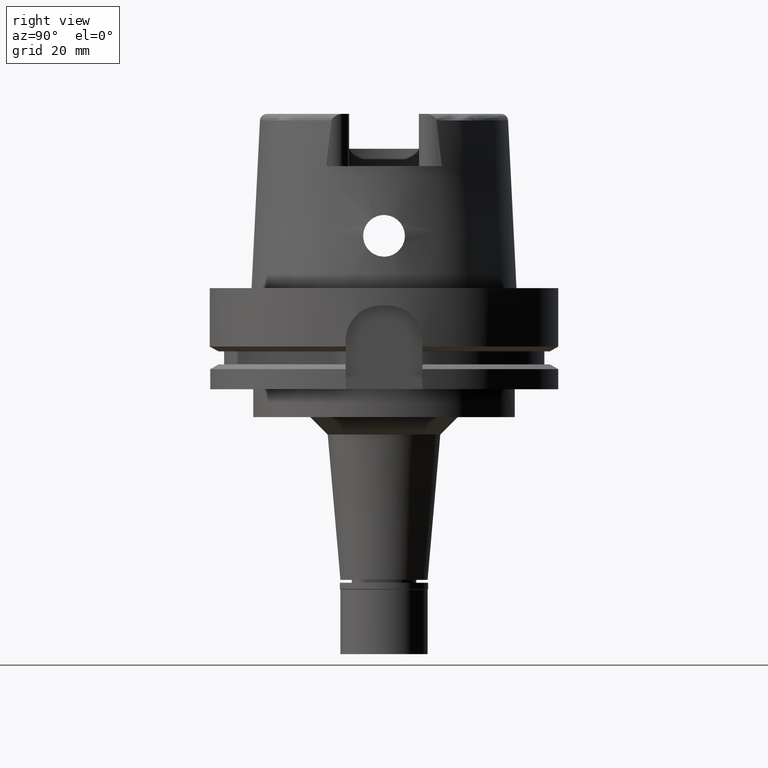
[diagram: clean part render]
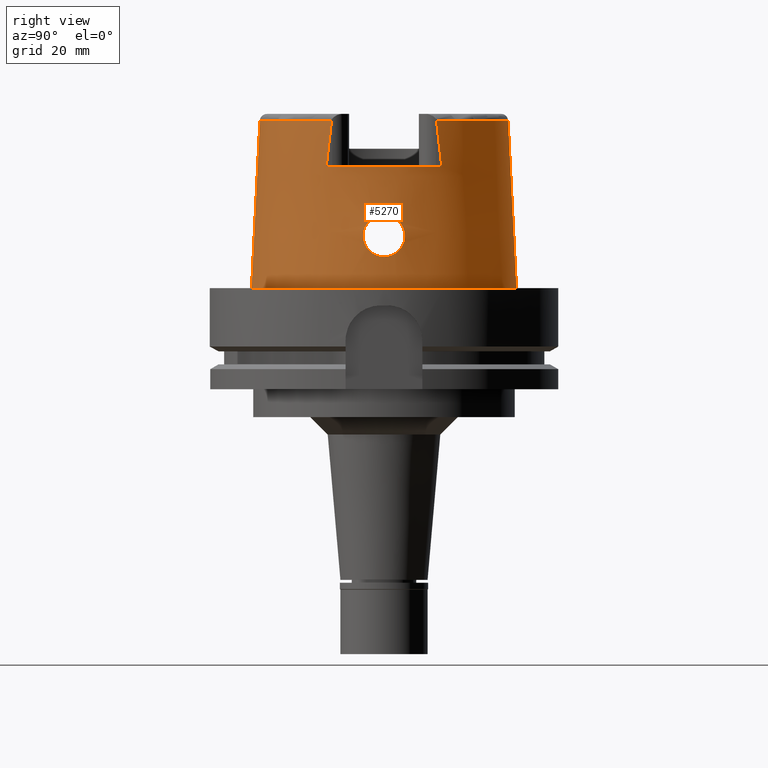
[diagram: same view with one face highlighted and labeled with its STEP entity id]
A machine part, right view. The second image highlights one B-rep face of the part: STEP entity #5270.
In plain terms, the highlighted conical surface has half-angle 2.862 deg.
Its self-contained STEP definition (entity closure, byte-faithful):
#5 = CARTESIAN_POINT ( 'NONE',  ( 36.84402229026887454, 3.436186891136067789, 19.91955858918327849 ) ) ;
#29 = CARTESIAN_POINT ( 'NONE',  ( 37.04093355832799261, 5.180103171425884945, 11.96593483695172644 ) ) ;
#124 = CARTESIAN_POINT ( 'NONE',  ( 36.90259820743139585, -2.267686303814399729, 20.55496554247947216 ) ) ;
#138 = CIRCLE ( 'NONE', #2741, 38.00001658251999714 ) ;
#147 = CARTESIAN_POINT ( 'NONE',  ( 37.22558408205313896, 4.215462280552438656, 10.73034759453282661 ) ) ;
#155 = CARTESIAN_POINT ( 'NONE',  ( 37.04556476977383284, -5.159838563029921055, 11.93750650502049915 ) ) ;
#176 = CARTESIAN_POINT ( 'NONE',  ( 36.94386214748547559, -5.570498757922903721, 12.77074300232805726 ) ) ;
#201 = CARTESIAN_POINT ( 'NONE',  ( 36.86747091515753283, -5.819783320285579542, 13.52649656315805338 ) ) ;
#234 = CARTESIAN_POINT ( 'NONE',  ( 32.25000000000000000, -15.55533876384941649, 43.94468602938906798 ) ) ;
#236 = CARTESIAN_POINT ( 'NONE',  ( 36.92015152081025064, -5.653685847524599239, 12.99039699923708824 ) ) ;
#246 = CARTESIAN_POINT ( 'NONE',  ( 0.002482252536769999872, 35.59494263424999616, 48.09987853799000135 ) ) ;
#263 = CARTESIAN_POINT ( 'NONE',  ( 36.79807234883478628, -4.182791388990104942, 19.30177999332491368 ) ) ;
#273 = DIRECTION ( 'NONE',  ( -5.154182075169067115E-05, 0.04993927430816067631, -0.9987522546783135224 ) ) ;
#330 = VERTEX_POINT ( 'NONE', #2910 ) ;
#339 = ORIENTED_EDGE ( 'NONE', *, *, #4291, .T. ) ;
#343 = CARTESIAN_POINT ( 'NONE',  ( 37.32349699264754861, 3.549655797967083970, 10.15782959666405993 ) ) ;
#344 = ORIENTED_EDGE ( 'NONE', *, *, #4361, .F. ) ;
#354 = CARTESIAN_POINT ( 'NONE',  ( 37.45383461885879228, -2.332393849465486557, 9.471884985776414467 ) ) ;
#368 = CARTESIAN_POINT ( 'NONE',  ( 36.88054672358548203, 2.764080532943880009, 20.32632467848313951 ) ) ;
#396 = CARTESIAN_POINT ( 'NONE',  ( 36.75577767514798921, 4.839767174970687869, 18.55275732080349727 ) ) ;
#397 = VERTEX_POINT ( 'NONE', #3364 ) ;
#409 = CARTESIAN_POINT ( 'NONE',  ( 37.39624438456338851, -2.944012575213589944, 9.768611615685383498 ) ) ;
#430 = CARTESIAN_POINT ( 'NONE',  ( 36.76908159248679198, 5.999138393293049099, 14.89581552774000883 ) ) ;
#448 = CARTESIAN_POINT ( 'NONE',  ( 36.85474125431106529, -3.250715232015903844, 20.04323978199477096 ) ) ;
#460 = CARTESIAN_POINT ( 'NONE',  ( 32.24997259582665521, 15.06456612037124998, 48.09965114463530256 ) ) ;
#483 = CARTESIAN_POINT ( 'NONE',  ( 32.25000000000000000, -16.55285457013000183, 35.00000000000000000 ) ) ;
#526 = B_SPLINE_CURVE_WITH_KNOTS ( 'NONE', 3,
 ( #1342, #2628, #5268, #3115, #3515, #4782, #3454, #976, #547, #2689, #124, #1851, #3563, #4354, #5300, #1422, #3138, #2220, #4302, #448, #1048, #3158, #3606, #3638, #3690, #2371, #5349, #2324, #263, #4484, #2401, #3182, #600, #1928, #2761, #1021, #2813, #5431, #5324, #5405, #3667, #2738, #1524, #3206, #2707, #4460, #3584, #4024, #620, #4111, #2346, #4080, #4003, #4048, #4917, #4882, #3235, #201, #1900, #4508, #236, #1982, #5382, #571, #176, #1098, #1499, #1447, #4966, #1468, #4940, #155, #2292, #1073, #1880, #2785, #647, #4543, #1961, #685, #1551, #3263, #5000, #4429, #4138, #2454, #4170, #3783, #1588, #409, #823, #1129, #5059, #2871, #1679, #354, #3355, #4259, #3389, #3417, #1182 ),
 .UNSPECIFIED., .F., .F.,
 ( 4, 2, 2, 1, 1, 1, 1, 2, 2, 2, 2, 1, 1, 2, 2, 2, 1, 1, 1, 2, 2, 2, 2, 2, 1, 1, 2, 2, 2, 2, 1, 1, 2, 2, 2, 2, 2, 1, 1, 1, 2, 2, 2, 2, 1, 1, 2, 2, 2, 1, 1, 1, 2, 2, 2, 2, 2, 1, 1, 2, 2, 4 ),
 ( 0.0000000000000000000, 0.06250000000000154043, 0.09375000000000224820, 0.1093750000000026090, 0.1171875000000027200, 0.1210937500000026645, 0.1230468750000027339, 0.1240234375000027339, 0.1250000000000027478, 0.1562500000000043576, 0.1718750000000050238, 0.1796875000000051903, 0.1835937500000053568, 0.1855468750000053291, 0.1875000000000053013, 0.2187500000000029143, 0.2343750000000017486, 0.2421875000000013878, 0.2460937500000011935, 0.2480468750000010270, 0.2500000000000008882, 0.3124999999999921729, 0.3437499999999876210, 0.3593749999999853451, 0.3671874999999841238, 0.3710937499999835132, 0.3730468749999835132, 0.3749999999999834577, 0.4374999999999863443, 0.4687499999999877875, 0.4843749999999883982, 0.4921874999999888978, 0.4960937499999889533, 0.4999999999999890643, 0.5624999999999901190, 0.5937499999999906741, 0.6093749999999910072, 0.6171874999999912292, 0.6210937499999913403, 0.6230468749999914513, 0.6240234374999914513, 0.6249999999999913403, 0.6562499999999917843, 0.6718749999999917843, 0.6796874999999916733, 0.6835937499999915623, 0.6855468749999915623, 0.6874999999999916733, 0.7187499999999931166, 0.7343749999999937828, 0.7421874999999940048, 0.7460937499999940048, 0.7480468749999940048, 0.7499999999999940048, 0.8124999999999945599, 0.8437499999999947820, 0.8593749999999950040, 0.8671874999999951150, 0.8710937499999951150, 0.8730468749999952260, 0.8749999999999952260, 1.000000000000000000 ),
 .UNSPECIFIED. ) ;
#547 = CARTESIAN_POINT ( 'NONE',  ( 36.90506814139484959, -2.206734380189449674, 20.57956359592819595 ) ) ;
#556 = ORIENTED_EDGE ( 'NONE', *, *, #3353, .T. ) ;
#562 = CARTESIAN_POINT ( 'NONE',  ( 37.45916978137763920, 2.267834944314239376, 9.445096860679138118 ) ) ;
#571 = CARTESIAN_POINT ( 'NONE',  ( 36.94183415914631041, -5.577808340860750391, 12.78903737493963177 ) ) ;
#591 = CARTESIAN_POINT ( 'NONE',  ( 37.13276340953054699, 4.744108422464647035, 11.32150295336093038 ) ) ;
#600 = CARTESIAN_POINT ( 'NONE',  ( 36.77296933009223068, -4.554611889151106929, 18.93048340402709329 ) ) ;
#620 = CARTESIAN_POINT ( 'NONE',  ( 36.74152252528565299, -5.979529405142266718, 15.50444706774793246 ) ) ;
#647 = CARTESIAN_POINT ( 'NONE',  ( 37.07598020347138856, -5.020155170366109587, 11.71393959176008082 ) ) ;
#685 = CARTESIAN_POINT ( 'NONE',  ( 37.15796435494310401, -4.603951143096521648, 11.15119575636387417 ) ) ;
#705 = B_SPLINE_CURVE_WITH_KNOTS ( 'NONE', 3,
 ( #4110, #234, #3297, #1071 ),
 .UNSPECIFIED., .F., .F.,
 ( 4, 4 ),
 ( 0.0000000000000000000, 1.000000000000000000 ),
 .UNSPECIFIED. ) ;
#708 = EDGE_CURVE ( 'NONE', #2185, #2504, #705, .T. ) ;
#719 = B_SPLINE_CURVE_WITH_KNOTS ( 'NONE', 3,
 ( #5341, #5020, #1571, #1143, #1011, #4855, #3744, #5479, #4587, #1604, #3312, #5048, #562, #1171, #755, #4190, #343, #3133, #2314, #992, #2702, #4449, #2285, #3996, #147, #1441, #3152, #2726, #591, #5161, #1261, #29, #4336, #5507, #1232, #1751, #3343, #4674, #4280, #2525, #1324, #4737, #2060, #4700, #3772, #5109, #430, #2557, #1200, #2146, #2614, #839, #4648, #2172, #5537, #3042, #1631, #2112, #5074, #1665, #2923, #4309, #3010, #2953, #396, #3463, #3831, #4217, #5136, #2503, #4769, #871, #1702, #3889, #5575, #790, #3408, #3863, #5, #1727, #1286, #368, #2977, #2084, #899, #3436, #3797, #4246, #2590, #3375 ),
 .UNSPECIFIED., .F., .F.,
 ( 4, 2, 2, 1, 1, 1, 1, 2, 2, 2, 2, 2, 1, 1, 1, 2, 2, 2, 2, 2, 1, 1, 2, 2, 2, 2, 2, 1, 2, 2, 2, 2, 1, 1, 1, 1, 2, 2, 2, 2, 2, 1, 1, 2, 2, 2, 2, 2, 2, 1, 1, 2, 2, 4 ),
 ( 0.0000000000000000000, 0.06250000000001371125, 0.09375000000002055300, 0.1093750000000239808, 0.1171875000000257988, 0.1210937500000266592, 0.1230468750000270617, 0.1240234375000273254, 0.1250000000000275613, 0.1875000000000364153, 0.2187500000000407452, 0.2343750000000429101, 0.2421875000000441036, 0.2460937500000448808, 0.2480468750000452416, 0.2490234375000453526, 0.2500000000000454636, 0.2812500000000451306, 0.3125000000000448530, 0.3437500000000445199, 0.3593750000000444644, 0.3671875000000444644, 0.3710937500000444644, 0.3750000000000444089, 0.4375000000000454636, 0.4687500000000459077, 0.4843750000000461853, 0.4921875000000462963, 0.4960937500000464073, 0.5000000000000464073, 0.5625000000000434097, 0.5937500000000419664, 0.6093750000000415223, 0.6171875000000410783, 0.6210937500000407452, 0.6230468750000408562, 0.6240234375000406342, 0.6250000000000404121, 0.6875000000000307532, 0.7187500000000259792, 0.7343750000000235367, 0.7421875000000224265, 0.7460937500000219824, 0.7480468750000219824, 0.7500000000000219824, 0.7812500000000190958, 0.7968750000000174305, 0.8125000000000156541, 0.8437500000000127676, 0.8593750000000113243, 0.8671875000000104361, 0.8710937500000099920, 0.8750000000000096589, 1.000000000000000000 ),
 .UNSPECIFIED. ) ;
#743 = CARTESIAN_POINT ( 'NONE',  ( 0.0000000000000000000, 0.0000000000000000000, 48.09987853799000135 ) ) ;
#755 = CARTESIAN_POINT ( 'NONE',  ( 37.40374177789426113, 2.882809707615733519, 9.723269259012896626 ) ) ;
#790 = CARTESIAN_POINT ( 'NONE',  ( 36.82482777838956878, 3.753696297869896004, 19.68182841806813954 ) ) ;
#793 = CARTESIAN_POINT ( 'NONE',  ( 0.0000000000000000000, 0.0000000000000000000, 35.00000000000000000 ) ) ;
#817 = DIRECTION ( 'NONE',  ( 0.0000000000000000000, 0.0000000000000000000, -1.000000000000000000 ) ) ;
#823 = CARTESIAN_POINT ( 'NONE',  ( 37.42106321383474921, -2.696607308932126301, 9.639312764294743374 ) ) ;
#839 = CARTESIAN_POINT ( 'NONE',  ( 36.72005464087633442, 5.854055470314257548, 16.32978406486832412 ) ) ;
#871 = CARTESIAN_POINT ( 'NONE',  ( 36.79118774016085780, 4.286700598355508873, 19.19814296388279118 ) ) ;
#885 = CARTESIAN_POINT ( 'NONE',  ( 0.0000000000000000000, 0.0000000000000000000, 48.09987853799000135 ) ) ;
#899 = CARTESIAN_POINT ( 'NONE',  ( 36.89701101294453167, 2.400831099805891267, 20.49878639055818752 ) ) ;
#976 = CARTESIAN_POINT ( 'NONE',  ( 36.90843095304061450, -2.121343288482854472, 20.61290381867053867 ) ) ;
#992 = CARTESIAN_POINT ( 'NONE',  ( 37.25706748420252978, 4.015700742112743526, 10.54159962638218317 ) ) ;
#1011 = CARTESIAN_POINT ( 'NONE',  ( 37.51010101229577742, 1.515502203131552150, 9.191163657362086070 ) ) ;
#1013 = VERTEX_POINT ( 'NONE', #1284 ) ;
#1021 = CARTESIAN_POINT ( 'NONE',  ( 36.73241821351307834, -5.228197639947719466, 17.94946786510515224 ) ) ;
#1045 = VECTOR ( 'NONE', #273, 1000.000000000000227 ) ;
#1048 = CARTESIAN_POINT ( 'NONE',  ( 36.85272717623013250, -3.286575354556029893, 20.01982351904963764 ) ) ;
#1071 = CARTESIAN_POINT ( 'NONE',  ( 32.25000000000000000, -16.55285457013000183, 35.00000000000000000 ) ) ;
#1073 = CARTESIAN_POINT ( 'NONE',  ( 37.06598824066610121, -5.066877503609469535, 11.78626146703667033 ) ) ;
#1098 = CARTESIAN_POINT ( 'NONE',  ( 36.94521727371356690, -5.565602832857006632, 12.75854772957709216 ) ) ;
#1129 = CARTESIAN_POINT ( 'NONE',  ( 37.42889392795074599, -2.614706696107446326, 9.598951835206161576 ) ) ;
#1143 = CARTESIAN_POINT ( 'NONE',  ( 37.51960116609441087, 1.324551244228580726, 9.144807211700509697 ) ) ;
#1171 = CARTESIAN_POINT ( 'NONE',  ( 37.43514580773994282, 2.563906614813225460, 9.566253987333027453 ) ) ;
#1180 = EDGE_CURVE ( 'NONE', #1013, #2420, #1598, .T. ) ;
#1182 = CARTESIAN_POINT ( 'NONE',  ( 37.55000165825000380, 0.0000000000000000000, 9.000000000000000000 ) ) ;
#1200 = CARTESIAN_POINT ( 'NONE',  ( 36.76555775811576154, 5.999931057643867582, 14.96267048571820091 ) ) ;
#1232 = CARTESIAN_POINT ( 'NONE',  ( 36.97266862267717613, 5.462959358127256415, 12.51796737563318196 ) ) ;
#1261 = CARTESIAN_POINT ( 'NONE',  ( 37.06348430194577048, 5.078372463821985150, 11.79883060550961460 ) ) ;
#1284 = CARTESIAN_POINT ( 'NONE',  ( 0.0000000000000000000, 35.59494289391000166, 48.09987853799000135 ) ) ;
#1286 = CARTESIAN_POINT ( 'NONE',  ( 36.86751136768458537, 3.026390672128199011, 20.18463717076971164 ) ) ;
#1324 = CARTESIAN_POINT ( 'NONE',  ( 36.82362393045474391, 5.928089781867543095, 14.05304283387241426 ) ) ;
#1342 = CARTESIAN_POINT ( 'NONE',  ( 36.94998175923000616, -1.503990973344999703E-13, 21.00000000000000000 ) ) ;
#1419 = DIRECTION ( 'NONE',  ( 0.0000000000000000000, 1.000000000000000000, 0.0000000000000000000 ) ) ;
#1422 = CARTESIAN_POINT ( 'NONE',  ( 36.87505234095662132, -2.868965316645831543, 20.27055698998670152 ) ) ;
#1441 = CARTESIAN_POINT ( 'NONE',  ( 37.22458390474815104, 4.221596745381138049, 10.73641489633079793 ) ) ;
#1447 = CARTESIAN_POINT ( 'NONE',  ( 36.96379411370127599, -5.498176763626497099, 12.59215105514096855 ) ) ;
#1468 = CARTESIAN_POINT ( 'NONE',  ( 37.01601363665164257, -5.288556215854875120, 12.16436356982866940 ) ) ;
#1499 = CARTESIAN_POINT ( 'NONE',  ( 36.94603906929595638, -5.562625575826621649, 12.75117280820091992 ) ) ;
#1504 = CARTESIAN_POINT ( 'NONE',  ( 32.25000000000000000, 15.55558141463885313, 43.94359191621827421 ) ) ;
#1524 = CARTESIAN_POINT ( 'NONE',  ( 36.71952660397398205, -5.530042997470418165, 17.32781850199934581 ) ) ;
#1551 = CARTESIAN_POINT ( 'NONE',  ( 37.17534739075271233, -4.508440217515045312, 11.03882888668362483 ) ) ;
#1571 = CARTESIAN_POINT ( 'NONE',  ( 37.54240153521109136, 0.7524108426954240203, 9.034704343390702164 ) ) ;
#1588 = CARTESIAN_POINT ( 'NONE',  ( 37.37792958248473951, -3.111244219222824459, 9.865775184316843749 ) ) ;
#1598 = LINE ( 'NONE', #246, #1045 ) ;
#1604 = CARTESIAN_POINT ( 'NONE',  ( 37.46209925862964951, 2.231385075635484938, 9.430332142444729726 ) ) ;
#1624 = CARTESIAN_POINT ( 'NONE',  ( 0.0000000000000000000, 0.0000000000000000000, 1.023181539494999863E-12 ) ) ;
#1631 = CARTESIAN_POINT ( 'NONE',  ( 36.71804534007004861, 5.584312547931403969, 17.19466506677200002 ) ) ;
#1665 = CARTESIAN_POINT ( 'NONE',  ( 36.71876822048951539, 5.556246618355466182, 17.26454475319323478 ) ) ;
#1679 = CARTESIAN_POINT ( 'NONE',  ( 37.45133342021201628, -2.362315929952969462, 9.484541054134465909 ) ) ;
#1702 = CARTESIAN_POINT ( 'NONE',  ( 36.79193948799943570, 4.275143006203766305, 19.20990554178731458 ) ) ;
#1727 = CARTESIAN_POINT ( 'NONE',  ( 36.85838025935542817, 3.194593781806560617, 20.08255042494733189 ) ) ;
#1751 = CARTESIAN_POINT ( 'NONE',  ( 36.96468483771077018, 5.493419729212615898, 12.58691636263394464 ) ) ;
#1753 = AXIS2_PLACEMENT_3D ( 'NONE', #885, #5214, #1419 ) ;
#1763 = VERTEX_POINT ( 'NONE', #4143 ) ;
#1807 = CARTESIAN_POINT ( 'NONE',  ( -0.002482252536764999965, -35.59494263424999616, 48.09987853799000135 ) ) ;
#1851 = CARTESIAN_POINT ( 'NONE',  ( 36.90209811717493693, -2.279872348405458826, 20.54997526351404957 ) ) ;
#1880 = CARTESIAN_POINT ( 'NONE',  ( 37.07085645923351080, -5.044181815003533131, 11.75093438530423029 ) ) ;
#1900 = CARTESIAN_POINT ( 'NONE',  ( 36.89533054968850934, -5.735243296034070681, 13.23442448372744984 ) ) ;
#1928 = CARTESIAN_POINT ( 'NONE',  ( 36.75624582413763619, -4.813369378442840407, 18.60329748948846884 ) ) ;
#1961 = CARTESIAN_POINT ( 'NONE',  ( 37.12328775113897450, -4.789337853373231368, 11.38048568704981456 ) ) ;
#1982 = CARTESIAN_POINT ( 'NONE',  ( 36.92786858991762244, -5.627301368056009778, 12.91715501118880383 ) ) ;
#2017 = CONICAL_SURFACE ( 'NONE', #5178, 36.79747973821000073, 0.04996004983832824653 ) ;
#2060 = CARTESIAN_POINT ( 'NONE',  ( 36.79068680197799068, 5.982063460229071872, 14.52687139895127366 ) ) ;
#2063 = EDGE_CURVE ( 'NONE', #1013, #3470, #4160, .T. ) ;
#2078 = DIRECTION ( 'NONE',  ( 0.0000000000000000000, -1.000000000000000000, 0.0000000000000000000 ) ) ;
#2084 = CARTESIAN_POINT ( 'NONE',  ( 36.89402082977264996, 2.470320637190442703, 20.46827095306687738 ) ) ;
#2112 = CARTESIAN_POINT ( 'NONE',  ( 36.71845267111315536, 5.568036156256551905, 17.23545277971798484 ) ) ;
#2146 = CARTESIAN_POINT ( 'NONE',  ( 36.74491605690525375, 6.000843555285204189, 15.36717984514975832 ) ) ;
#2172 = CARTESIAN_POINT ( 'NONE',  ( 36.71651416762495046, 5.722425904684616427, 16.80656489823453015 ) ) ;
#2185 = VERTEX_POINT ( 'NONE', #2686 ) ;
#2220 = CARTESIAN_POINT ( 'NONE',  ( 36.86312235226503731, -3.097559107192225714, 20.13887171398672038 ) ) ;
#2285 = CARTESIAN_POINT ( 'NONE',  ( 37.22982925138796872, 4.189300255119198013, 10.70463749940268272 ) ) ;
#2292 = CARTESIAN_POINT ( 'NONE',  ( 37.05481726402077669, -5.118308449455449605, 11.86819537563165561 ) ) ;
#2302 = LINE ( 'NONE', #1807, #5280 ) ;
#2314 = CARTESIAN_POINT ( 'NONE',  ( 37.27610929770941084, 3.888812489460041544, 10.42945486965274426 ) ) ;
#2324 = CARTESIAN_POINT ( 'NONE',  ( 36.80217418803136553, -4.120936526981938464, 19.36143348041742485 ) ) ;
#2346 = CARTESIAN_POINT ( 'NONE',  ( 36.75426332623980130, -5.997171970077658898, 15.19462821378106199 ) ) ;
#2371 = CARTESIAN_POINT ( 'NONE',  ( 36.81738404649527041, -3.883490962965978177, 19.57472870452144775 ) ) ;
#2401 = CARTESIAN_POINT ( 'NONE',  ( 36.79514101618594424, -4.226525677883539167, 19.25871241032653458 ) ) ;
#2402 = FACE_OUTER_BOUND ( 'NONE', #4928, .T. ) ;
#2420 = VERTEX_POINT ( 'NONE', #5030 ) ;
#2426 = CARTESIAN_POINT ( 'NONE',  ( 0.0000000000000000000, 0.0000000000000000000, 24.04993926899999934 ) ) ;
#2427 = B_SPLINE_CURVE_WITH_KNOTS ( 'NONE', 3,
 ( #2430, #2766, #1504, #3187 ),
 .UNSPECIFIED., .F., .F.,
 ( 4, 4 ),
 ( 0.0000000000000000000, 1.000000000000000000 ),
 .UNSPECIFIED. ) ;
#2430 = CARTESIAN_POINT ( 'NONE',  ( 32.25000000000000000, 16.55285457013000183, 35.00000000000000000 ) ) ;
#2454 = CARTESIAN_POINT ( 'NONE',  ( 37.21441910452923452, -4.283080995465016194, 10.79816453388939124 ) ) ;
#2492 = DIRECTION ( 'NONE',  ( 0.9060280460804950309, -0.4232176505245974218, 0.0000000000000000000 ) ) ;
#2503 = CARTESIAN_POINT ( 'NONE',  ( 36.78794180120301860, 4.336650474236222408, 19.14667279332218897 ) ) ;
#2504 = VERTEX_POINT ( 'NONE', #483 ) ;
#2525 = CARTESIAN_POINT ( 'NONE',  ( 36.87106112490233301, 5.815480942578690637, 13.47157376626967107 ) ) ;
#2555 = AXIS2_PLACEMENT_3D ( 'NONE', #743, #4663, #2492 ) ;
#2557 = CARTESIAN_POINT ( 'NONE',  ( 36.76667393050330190, 5.999755223529641412, 14.94123671323368896 ) ) ;
#2580 = EDGE_LOOP ( 'NONE', ( #3482, #344 ) ) ;
#2590 = CARTESIAN_POINT ( 'NONE',  ( 36.94998175922998485, 0.7283165046141835131, 21.00000000000000000 ) ) ;
#2614 = CARTESIAN_POINT ( 'NONE',  ( 36.73141539658844579, 5.965364052773721504, 15.75338977471894530 ) ) ;
#2628 = CARTESIAN_POINT ( 'NONE',  ( 36.94998175922998485, -0.3620885614125477492, 20.99999999999999645 ) ) ;
#2686 = CARTESIAN_POINT ( 'NONE',  ( 32.25000552016999222, -15.06439824941999994, 48.10004203804000156 ) ) ;
#2689 = CARTESIAN_POINT ( 'NONE',  ( 36.90334538952718191, -2.249405042210464778, 20.56241672617037253 ) ) ;
#2702 = CARTESIAN_POINT ( 'NONE',  ( 37.24736494489123828, 4.079039302764896568, 10.59917329973114342 ) ) ;
#2707 = CARTESIAN_POINT ( 'NONE',  ( 36.71469014124701857, -5.692677256031709376, 16.93765875247069630 ) ) ;
#2726 = CARTESIAN_POINT ( 'NONE',  ( 37.17855100105379051, 4.495654155716386491, 11.02168390415966037 ) ) ;
#2738 = CARTESIAN_POINT ( 'NONE',  ( 36.71978690667189937, -5.521703757098619825, 17.34753107561223473 ) ) ;
#2741 = AXIS2_PLACEMENT_3D ( 'NONE', #1624, #3426, #2078 ) ;
#2761 = CARTESIAN_POINT ( 'NONE',  ( 36.73757349939548789, -5.133003528773625312, 18.11293176384720027 ) ) ;
#2764 = DIRECTION ( 'NONE',  ( 0.0000000000000000000, -1.000000000000000000, 0.0000000000000000000 ) ) ;
#2766 = CARTESIAN_POINT ( 'NONE',  ( 32.25000000000000000, 16.05167221200974126, 39.57715430335893814 ) ) ;
#2785 = CARTESIAN_POINT ( 'NONE',  ( 37.07411986208909838, -5.028904343061126880, 11.72733768015218203 ) ) ;
#2813 = CARTESIAN_POINT ( 'NONE',  ( 36.72628851823691321, -5.355582479268483631, 17.70667491955778416 ) ) ;
#2840 = ORIENTED_EDGE ( 'NONE', *, *, #3079, .F. ) ;
#2871 = CARTESIAN_POINT ( 'NONE',  ( 37.44535218365392382, -2.432425728827383615, 9.514868873899684942 ) ) ;
#2910 = CARTESIAN_POINT ( 'NONE',  ( 36.94998175923000616, -1.503990973344999703E-13, 21.00000000000000000 ) ) ;
#2923 = CARTESIAN_POINT ( 'NONE',  ( 36.71884738683503713, 5.553383660732837512, 17.27155339432511738 ) ) ;
#2953 = CARTESIAN_POINT ( 'NONE',  ( 36.74853566020016871, 4.957463733241413983, 18.38551433265030255 ) ) ;
#2977 = CARTESIAN_POINT ( 'NONE',  ( 36.88689907488770814, 2.630427617966597964, 20.39430773048266587 ) ) ;
#3010 = CARTESIAN_POINT ( 'NONE',  ( 36.73013471461727875, 5.272015045907214592, 17.89110242081907387 ) ) ;
#3042 = CARTESIAN_POINT ( 'NONE',  ( 36.71735222416229760, 5.616057218471815382, 17.11288748673489835 ) ) ;
#3046 = DIRECTION ( 'NONE',  ( 0.8896561898442558736, 0.4566309931134779343, 0.0000000000000000000 ) ) ;
#3079 = EDGE_CURVE ( 'NONE', #4557, #3470, #2427, .T. ) ;
#3115 = CARTESIAN_POINT ( 'NONE',  ( 36.93385286402987333, -1.316912390411061562, 20.85697462806762559 ) ) ;
#3133 = CARTESIAN_POINT ( 'NONE',  ( 37.28831948655970052, 3.803941293661535994, 10.35869649138061988 ) ) ;
#3138 = CARTESIAN_POINT ( 'NONE',  ( 36.87045779122991007, -2.959059444620139256, 20.22067685886164767 ) ) ;
#3152 = CARTESIAN_POINT ( 'NONE',  ( 37.20129128858799561, 4.364124878769064075, 10.87782590260341919 ) ) ;
#3158 = CARTESIAN_POINT ( 'NONE',  ( 36.85137521554334228, -3.310537543883262490, 20.00405304669309459 ) ) ;
#3182 = CARTESIAN_POINT ( 'NONE',  ( 36.79462433786338238, -4.234198499096480717, 19.25108829967411594 ) ) ;
#3187 = CARTESIAN_POINT ( 'NONE',  ( 32.24997259582665521, 15.06456612037124998, 48.09965114463530256 ) ) ;
#3206 = CARTESIAN_POINT ( 'NONE',  ( 36.71942222295353986, -5.533450221726796237, 17.31971678525022540 ) ) ;
#3235 = CARTESIAN_POINT ( 'NONE',  ( 36.85050243448285556, -5.865182798303187894, 13.72030452527624433 ) ) ;
#3263 = CARTESIAN_POINT ( 'NONE',  ( 37.19570588353555252, -4.392281919024273229, 10.91195814973803202 ) ) ;
#3289 = EDGE_CURVE ( 'NONE', #2185, #397, #5364, .T. ) ;
#3297 = CARTESIAN_POINT ( 'NONE',  ( 32.25000000000000000, -16.05145952826607925, 39.57800535004240317 ) ) ;
#3312 = CARTESIAN_POINT ( 'NONE',  ( 37.46069093504898007, 2.248964285558693099, 9.437428688129770649 ) ) ;
#3343 = CARTESIAN_POINT ( 'NONE',  ( 36.95937732214242288, 5.513462918130212387, 12.63306958010395142 ) ) ;
#3353 = EDGE_CURVE ( 'NONE', #4557, #2504, #3719, .T. ) ;
#3355 = CARTESIAN_POINT ( 'NONE',  ( 37.45548826496788308, -2.312474210728880930, 9.463522807396158143 ) ) ;
#3364 = CARTESIAN_POINT ( 'NONE',  ( 1.065814103639999922E-14, -35.59494289391000166, 48.09987853799000135 ) ) ;
#3375 = CARTESIAN_POINT ( 'NONE',  ( 36.94998175923000616, -1.503990973344999703E-13, 21.00000000000000000 ) ) ;
#3389 = CARTESIAN_POINT ( 'NONE',  ( 37.51904149936459731, -1.536221788259908072, 9.142531777709351104 ) ) ;
#3408 = CARTESIAN_POINT ( 'NONE',  ( 36.82956315255265878, 3.676115517443279579, 19.74298723751773466 ) ) ;
#3417 = CARTESIAN_POINT ( 'NONE',  ( 37.55000165824998248, -0.7497877236964525238, 8.999999999999994671 ) ) ;
#3426 = DIRECTION ( 'NONE',  ( 0.0000000000000000000, 0.0000000000000000000, 1.000000000000000000 ) ) ;
#3436 = CARTESIAN_POINT ( 'NONE',  ( 36.89899069117177532, 2.354313548744845885, 20.51886305800203658 ) ) ;
#3454 = CARTESIAN_POINT ( 'NONE',  ( 36.91482580797345037, -1.950423407917421414, 20.67579790995359090 ) ) ;
#3463 = CARTESIAN_POINT ( 'NONE',  ( 36.76830324719999510, 4.641542555443657569, 18.80360886897130612 ) ) ;
#3470 = VERTEX_POINT ( 'NONE', #460 ) ;
#3482 = ORIENTED_EDGE ( 'NONE', *, *, #4641, .F. ) ;
#3515 = CARTESIAN_POINT ( 'NONE',  ( 36.92881258427981805, -1.511311438038027921, 20.81010599665324889 ) ) ;
#3563 = CARTESIAN_POINT ( 'NONE',  ( 36.90178981332610419, -2.287349034765292277, 20.54689645982074708 ) ) ;
#3584 = CARTESIAN_POINT ( 'NONE',  ( 36.72670640342203541, -5.922122642520232461, 15.98311182972114786 ) ) ;
#3606 = CARTESIAN_POINT ( 'NONE',  ( 36.85059043037725246, -3.324376276054074708, 19.99486467032764381 ) ) ;
#3629 = AXIS2_PLACEMENT_3D ( 'NONE', #793, #817, #3046 ) ;
#3638 = CARTESIAN_POINT ( 'NONE',  ( 36.84071277638829400, -3.497870070897360684, 19.87888143787008843 ) ) ;
#3667 = CARTESIAN_POINT ( 'NONE',  ( 36.72018988598081535, -5.509087645885384354, 17.37713298504271364 ) ) ;
#3690 = CARTESIAN_POINT ( 'NONE',  ( 36.83139436309542702, -3.655793573661920703, 19.76169638515684568 ) ) ;
#3719 = CIRCLE ( 'NONE', #3629, 36.24995854370000359 ) ;
#3744 = CARTESIAN_POINT ( 'NONE',  ( 37.48373808550459074, 1.942978843432939362, 9.321758564682674830 ) ) ;
#3772 = CARTESIAN_POINT ( 'NONE',  ( 36.77669093782571963, 5.995320341486936044, 14.75860922394882024 ) ) ;
#3783 = CARTESIAN_POINT ( 'NONE',  ( 37.31767842855558115, -3.614381883867316514, 10.19410114587618921 ) ) ;
#3797 = CARTESIAN_POINT ( 'NONE',  ( 36.89992820240836835, 2.332050789725338635, 20.52831311259517832 ) ) ;
#3831 = CARTESIAN_POINT ( 'NONE',  ( 36.77275552948906068, 4.571857531101953143, 18.88721565643838574 ) ) ;
#3863 = CARTESIAN_POINT ( 'NONE',  ( 36.83912065252438595, 3.518029756557842003, 19.86140101872051744 ) ) ;
#3889 = CARTESIAN_POINT ( 'NONE',  ( 36.80154128997905616, 4.127586303389930933, 19.35913342761987010 ) ) ;
#3917 = EDGE_CURVE ( 'NONE', #397, #1763, #2302, .T. ) ;
#3961 = DIRECTION ( 'NONE',  ( 5.154182075158067884E-05, -0.04993927430816067631, -0.9987522546783135224 ) ) ;
#3996 = CARTESIAN_POINT ( 'NONE',  ( 37.22728442019406714, 4.205000670985509004, 10.72004401199225043 ) ) ;
#4003 = CARTESIAN_POINT ( 'NONE',  ( 36.75987116721199754, -5.999565830409312461, 15.07597738574791180 ) ) ;
#4024 = CARTESIAN_POINT ( 'NONE',  ( 36.73175205308987756, -5.950689862795686125, 15.79135653235608494 ) ) ;
#4048 = CARTESIAN_POINT ( 'NONE',  ( 36.76109246154855015, -5.999824983971466352, 15.05101530504668794 ) ) ;
#4080 = CARTESIAN_POINT ( 'NONE',  ( 36.75760050585196836, -5.998777514530292621, 15.12341413098116405 ) ) ;
#4110 = CARTESIAN_POINT ( 'NONE',  ( 32.25000552016999222, -15.06439824941999994, 48.10004203804000156 ) ) ;
#4111 = CARTESIAN_POINT ( 'NONE',  ( 36.74695826080704109, -5.990448555886615623, 15.36117166967744474 ) ) ;
#4112 = DIRECTION ( 'NONE',  ( 0.0000000000000000000, 0.0000000000000000000, -1.000000000000000000 ) ) ;
#4138 = CARTESIAN_POINT ( 'NONE',  ( 37.21319749226667994, -4.290274443681995287, 10.80551598655547885 ) ) ;
#4143 = CARTESIAN_POINT ( 'NONE',  ( 0.0000000000000000000, -38.00001658251999714, 6.892264536873000076E-13 ) ) ;
#4160 = CIRCLE ( 'NONE', #1753, 35.59494289391000166 ) ;
#4170 = CARTESIAN_POINT ( 'NONE',  ( 37.27043532901186040, -3.952124114606699656, 10.46241128871612602 ) ) ;
#4190 = CARTESIAN_POINT ( 'NONE',  ( 37.34501124942217842, 3.380607384859967812, 10.03914185949338744 ) ) ;
#4217 = CARTESIAN_POINT ( 'NONE',  ( 36.77984959033020118, 4.461651261353002162, 19.01207548946371162 ) ) ;
#4246 = CARTESIAN_POINT ( 'NONE',  ( 36.93363774067599081, 1.522222853344391558, 20.86571022955106258 ) ) ;
#4259 = CARTESIAN_POINT ( 'NONE',  ( 37.45615367662861672, -2.304415883814844079, 9.460159660513717483 ) ) ;
#4280 = CARTESIAN_POINT ( 'NONE',  ( 36.90927978809699539, 5.698788394222156661, 13.07455740910830855 ) ) ;
#4291 = EDGE_CURVE ( 'NONE', #1763, #2420, #138, .T. ) ;
#4302 = CARTESIAN_POINT ( 'NONE',  ( 36.85934372918887192, -3.167646631167361448, 20.09622266305593996 ) ) ;
#4309 = CARTESIAN_POINT ( 'NONE',  ( 36.72230088324277375, 5.430321679839236637, 17.57169666587186185 ) ) ;
#4336 = CARTESIAN_POINT ( 'NONE',  ( 37.00782781454368831, 5.321361923835561392, 12.22639902912963628 ) ) ;
#4354 = CARTESIAN_POINT ( 'NONE',  ( 36.89536340334147013, -2.442683890657500800, 20.48268737495321901 ) ) ;
#4361 = EDGE_CURVE ( 'NONE', #330, #4438, #526, .T. ) ;
#4429 = CARTESIAN_POINT ( 'NONE',  ( 37.21027981659077000, -4.307415941176407692, 10.82312091977133583 ) ) ;
#4438 = VERTEX_POINT ( 'NONE', #4598 ) ;
#4449 = CARTESIAN_POINT ( 'NONE',  ( 37.23572745871845058, 4.152612220913159291, 10.66903015276529842 ) ) ;
#4460 = CARTESIAN_POINT ( 'NONE',  ( 36.71597344980659727, -5.807588668191186798, 16.55695077386898362 ) ) ;
#4484 = CARTESIAN_POINT ( 'NONE',  ( 36.79631365142255817, -4.209063743244282563, 19.27597159777572244 ) ) ;
#4508 = CARTESIAN_POINT ( 'NONE',  ( 36.90501824678528919, -5.704324707370449055, 13.13684376243322482 ) ) ;
#4521 = ORIENTED_EDGE ( 'NONE', *, *, #3917, .T. ) ;
#4543 = CARTESIAN_POINT ( 'NONE',  ( 37.10028930568974914, -4.905410726189097126, 11.53942395789500708 ) ) ;
#4557 = VERTEX_POINT ( 'NONE', #4983 ) ;
#4587 = CARTESIAN_POINT ( 'NONE',  ( 37.46534638151007357, 2.190327774487336399, 9.413983599784504719 ) ) ;
#4598 = CARTESIAN_POINT ( 'NONE',  ( 37.55000165825000380, 0.0000000000000000000, 9.000000000000000000 ) ) ;
#4624 = ORIENTED_EDGE ( 'NONE', *, *, #1180, .F. ) ;
#4641 = EDGE_CURVE ( 'NONE', #4438, #330, #719, .T. ) ;
#4648 = CARTESIAN_POINT ( 'NONE',  ( 36.71774942809946651, 5.807292514001869854, 16.52141168701066576 ) ) ;
#4663 = DIRECTION ( 'NONE',  ( 0.0000000000000000000, 0.0000000000000000000, -1.000000000000000000 ) ) ;
#4674 = CARTESIAN_POINT ( 'NONE',  ( 36.95689310131857752, 5.522753584108947678, 12.65481136841834697 ) ) ;
#4700 = CARTESIAN_POINT ( 'NONE',  ( 36.78484118630846922, 5.988676300158698673, 14.62013398789046192 ) ) ;
#4737 = CARTESIAN_POINT ( 'NONE',  ( 36.80945999902959187, 5.955256594997766051, 14.24458319512461024 ) ) ;
#4769 = CARTESIAN_POINT ( 'NONE',  ( 36.78988416911014525, 4.306754025779826023, 19.17756820729109535 ) ) ;
#4782 = CARTESIAN_POINT ( 'NONE',  ( 36.91974008072971714, -1.803892231054841089, 20.72331383968349527 ) ) ;
#4855 = CARTESIAN_POINT ( 'NONE',  ( 37.49300073545823864, 1.800693929493377698, 9.275724236368619202 ) ) ;
#4882 = CARTESIAN_POINT ( 'NONE',  ( 36.80441081949669524, -5.971215317111957965, 14.29533930232504169 ) ) ;
#4917 = CARTESIAN_POINT ( 'NONE',  ( 36.78010151222308366, -6.001641368943309018, 14.66997699214918072 ) ) ;
#4928 = EDGE_LOOP ( 'NONE', ( #5072, #5498, #4521, #339, #4624, #5403, #2840, #556 ) ) ;
#4940 = CARTESIAN_POINT ( 'NONE',  ( 37.02748995273582011, -5.239660015271352833, 12.07473684300772376 ) ) ;
#4966 = CARTESIAN_POINT ( 'NONE',  ( 36.98330537422260988, -5.423618871746943348, 12.42648070076816857 ) ) ;
#4983 = CARTESIAN_POINT ( 'NONE',  ( 32.25000000000000000, 16.55285457013000183, 35.00000000000000000 ) ) ;
#5000 = CARTESIAN_POINT ( 'NONE',  ( 37.20590470101151936, -4.333047078602315416, 10.84960729330689233 ) ) ;
#5020 = CARTESIAN_POINT ( 'NONE',  ( 37.55000165825000380, 0.3720391665025622463, 9.000000000000001776 ) ) ;
#5030 = CARTESIAN_POINT ( 'NONE',  ( 0.0000000000000000000, 38.00001658251999714, 1.023181539494999863E-12 ) ) ;
#5034 = FACE_BOUND ( 'NONE', #2580, .T. ) ;
#5048 = CARTESIAN_POINT ( 'NONE',  ( 37.45974834166428735, 2.260679958084642394, 9.442179736220809971 ) ) ;
#5059 = CARTESIAN_POINT ( 'NONE',  ( 37.43997665566313060, -2.492996309136777722, 9.542255731632032223 ) ) ;
#5072 = ORIENTED_EDGE ( 'NONE', *, *, #708, .F. ) ;
#5074 = CARTESIAN_POINT ( 'NONE',  ( 36.71864026436495720, 5.560973977520250244, 17.25291097128673456 ) ) ;
#5109 = CARTESIAN_POINT ( 'NONE',  ( 36.77277035733971644, 5.997823617366970339, 14.82749249999434404 ) ) ;
#5136 = CARTESIAN_POINT ( 'NONE',  ( 36.78350053010269960, 4.405128914731433198, 19.07436701605248430 ) ) ;
#5161 = CARTESIAN_POINT ( 'NONE',  ( 37.10954628470444305, 4.861831381977907540, 11.47864401306228288 ) ) ;
#5178 = AXIS2_PLACEMENT_3D ( 'NONE', #2426, #4112, #2764 ) ;
#5214 = DIRECTION ( 'NONE',  ( 0.0000000000000000000, 0.0000000000000000000, -1.000000000000000000 ) ) ;
#5268 = CARTESIAN_POINT ( 'NONE',  ( 36.94594953542995341, -0.7393743999681876566, 20.96715725015319265 ) ) ;
#5270 = ADVANCED_FACE ( 'NONE', ( #2402, #5034 ), #2017, .T. ) ;
#5280 = VECTOR ( 'NONE', #3961, 1000.000000000000227 ) ;
#5300 = CARTESIAN_POINT ( 'NONE',  ( 36.88794876138720724, -2.606723665448141158, 20.40776512278873867 ) ) ;
#5324 = CARTESIAN_POINT ( 'NONE',  ( 36.72224926120505017, -5.451693120986158547, 17.50619070959471557 ) ) ;
#5341 = CARTESIAN_POINT ( 'NONE',  ( 37.55000165825000380, 0.0000000000000000000, 9.000000000000000000 ) ) ;
#5349 = CARTESIAN_POINT ( 'NONE',  ( 36.81037071402998606, -3.995043974047088664, 19.47844910322067591 ) ) ;
#5364 = CIRCLE ( 'NONE', #2555, 35.59494289391000166 ) ;
#5382 = CARTESIAN_POINT ( 'NONE',  ( 36.93713509337574408, -5.594624357260415515, 12.83173350620186071 ) ) ;
#5403 = ORIENTED_EDGE ( 'NONE', *, *, #2063, .T. ) ;
#5405 = CARTESIAN_POINT ( 'NONE',  ( 36.72121784786961030, -5.478893086835468829, 17.44642928107364099 ) ) ;
#5431 = CARTESIAN_POINT ( 'NONE',  ( 36.72451249206942947, -5.395478612611404046, 17.62613967144162785 ) ) ;
#5479 = CARTESIAN_POINT ( 'NONE',  ( 37.47168476537257220, 2.108062677942818652, 9.382125766254317156 ) ) ;
#5498 = ORIENTED_EDGE ( 'NONE', *, *, #3289, .T. ) ;
#5507 = CARTESIAN_POINT ( 'NONE',  ( 36.99145503556212589, 5.389156991253854834, 12.35907971327415744 ) ) ;
#5537 = CARTESIAN_POINT ( 'NONE',  ( 36.71645217706041109, 5.676314485892067552, 16.94856815470613043 ) ) ;
#5575 = CARTESIAN_POINT ( 'NONE',  ( 36.81075178336861597, 3.981768694041648793, 19.49271977744446005 ) ) ;